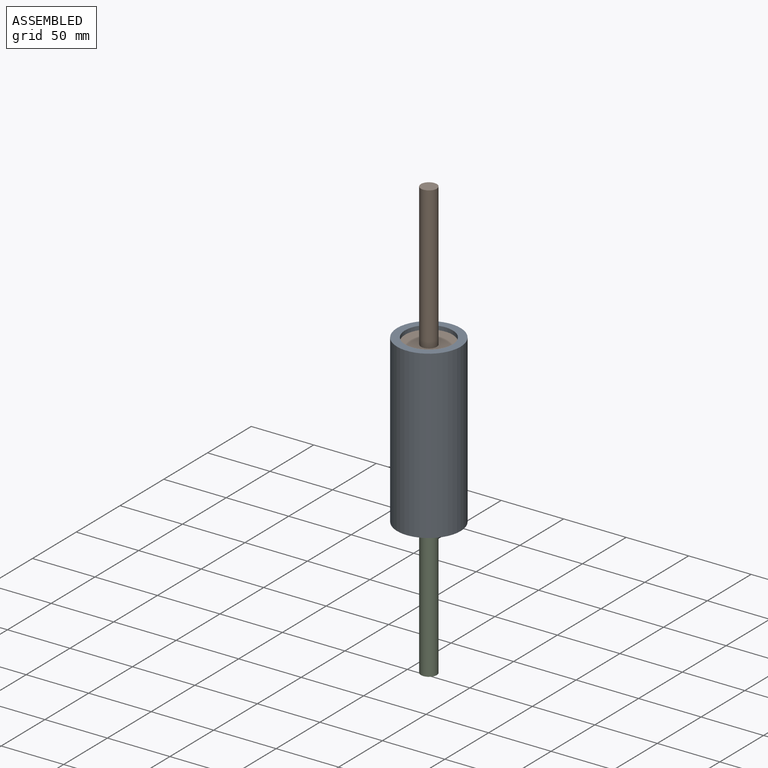
[diagram: assembled view]
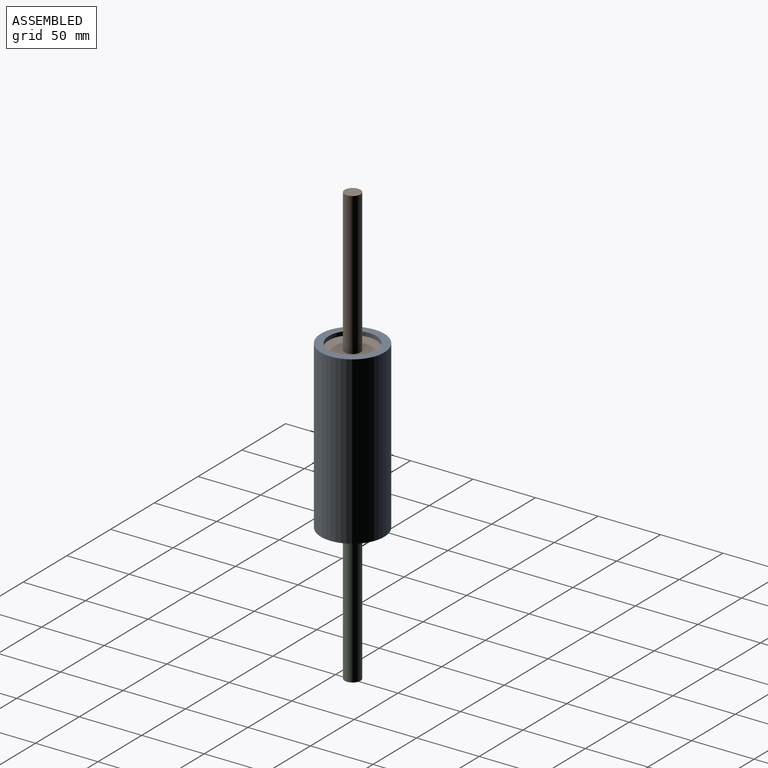
[diagram: assembled view, second angle]
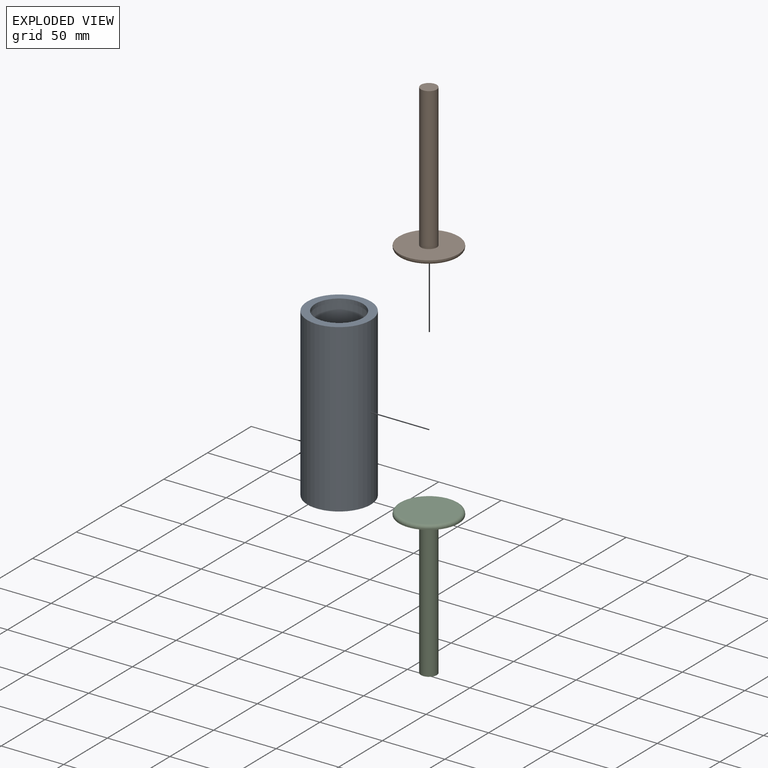
[diagram: exploded view]
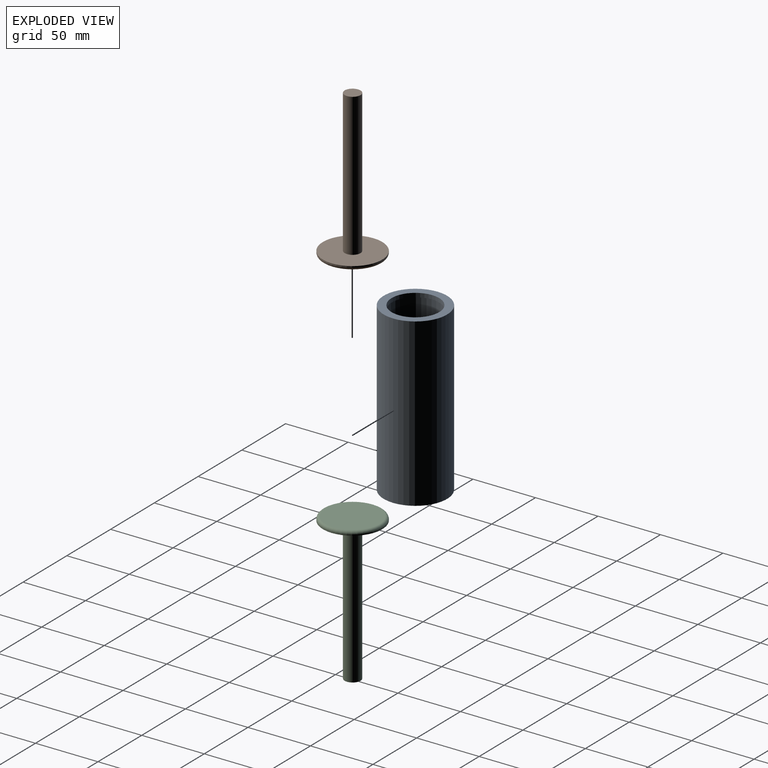
[diagram: exploded view, second angle]
ASSEMBLY  parts=3 mates=2
PART A: 8 faces, bbox 50.8x50.8x133.4 mm
  f0: plane 47.63x47.63mm, normal (0,0,1), area 641.3mm2, adj f2,f4
  f1: plane 47.63x47.63mm, normal (0,0,-1), area 641.3mm2, adj f2,f3
  f2: cylinder r=23.81mm len=127mm, axis (0,0,-1), area 19001.5mm2, adj f0,f1
  f3: cylinder r=19.05mm len=38.1mm, axis (0,0,-1), area 380mm2, adj f1,f6
  f4: cylinder r=19.05mm len=38.1mm, axis (0,0,-1), area 380mm2, adj f0,f7
  f5: cylinder r=25.4mm len=133.35mm, axis (0,0,-1), area 21281.7mm2, adj f6,f7
  f6: plane 50.8x50.8mm, normal (0,0,1), area 886.7mm2, adj f3,f5
  f7: plane 50.8x50.8mm, normal (0,0,-1), area 886.7mm2, adj f4,f5
PART B: 6 faces, bbox 51.5x51.5x117.5 mm
  f0: cylinder r=23.81mm len=47.63mm, axis (0,0,-1), area 133mm2, adj f1,f5
  f1: plane 47.63x47.63mm, normal (0,0,1), area 1654.7mm2, adj f0,f3
  f2: plane 43.05x43.05mm, normal (0,0,-1), area 1455.8mm2, adj f5
  f3: cylinder r=6.35mm len=114.3mm, axis (0,0,-1), area 4560.4mm2, adj f1,f4
  f4: plane 12.7x12.7mm, normal (0,0,1), area 126.7mm2, adj f3
  f5: torus R=21.53mm, axis (0,0,1), area 518.5mm2, adj f0,f2
PART C: same geometry as B
PLACE A t=(2.08,0.2,-32.89)mm fixed
PLACE B t=(2.08,0.2,89.03)mm
PLACE C rot(axis=(0,-1,0),180deg) t=(2.08,0.2,-27.81)mm
MATE slider C.f0 <-> A.f2  axis (0,0,-1) through (2.08,0.2,-30.98)mm
MATE slider B.f0 <-> A.f2  axis (0,0,1) through (2.08,0.2,92.21)mm
